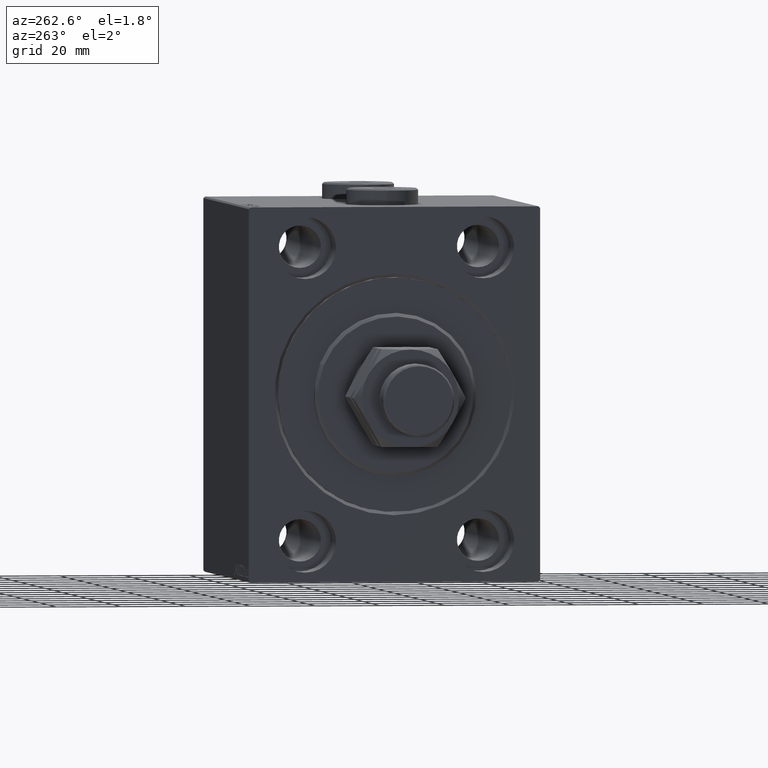
[diagram: clean part render]
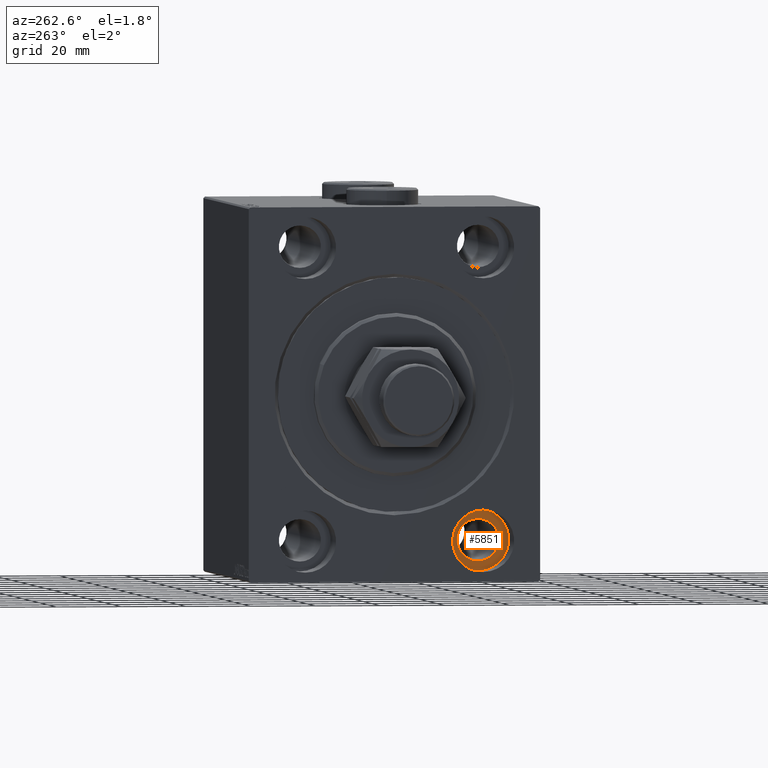
[diagram: same view with one face highlighted and labeled with its STEP entity id]
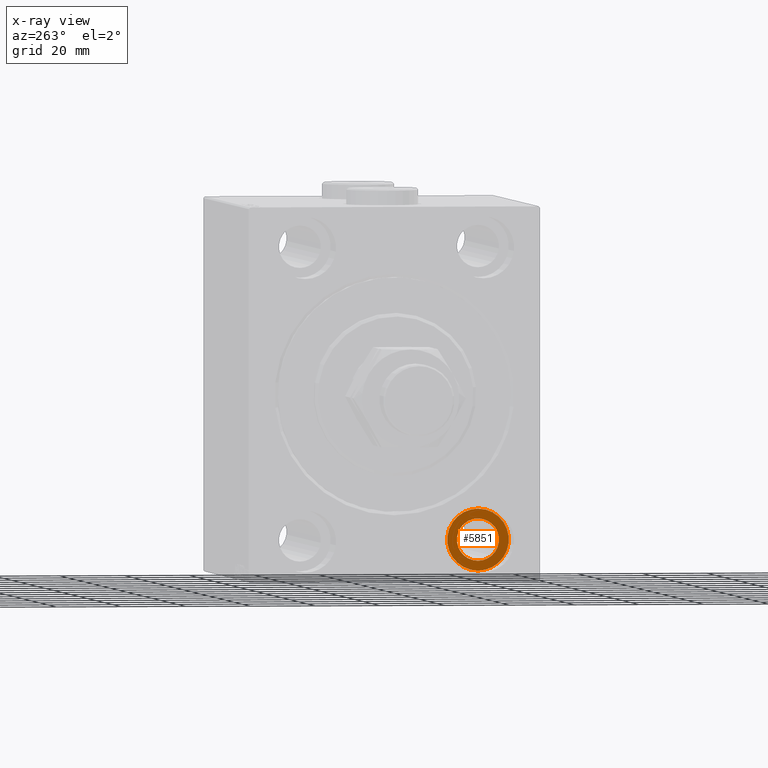
[diagram: x-ray of the same camera — body ghosted, the highlighted face saturated]
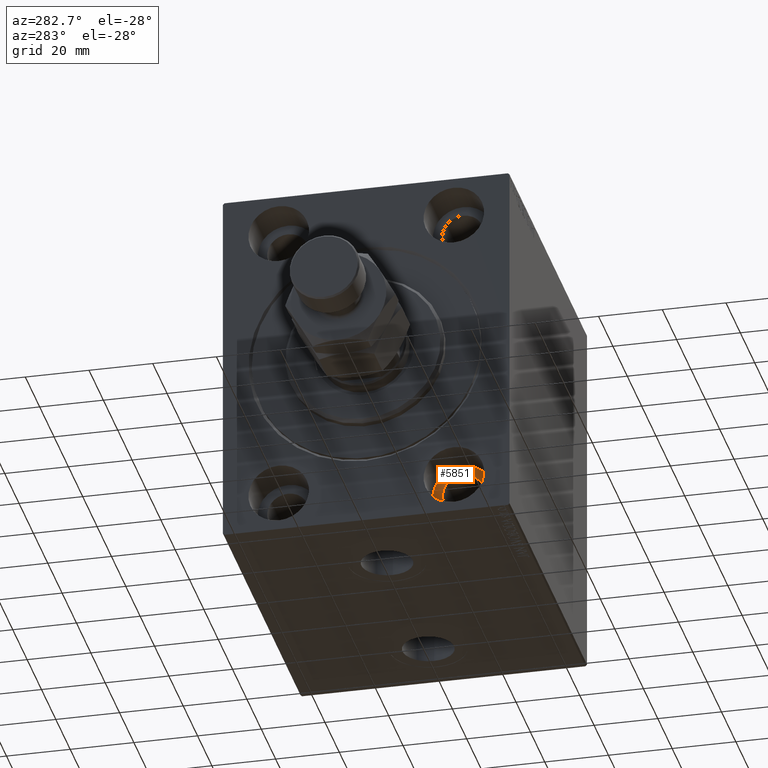
[diagram: same view with one face highlighted and labeled with its STEP entity id]
A machine part, auxiliary view. The second image highlights one B-rep face of the part: STEP entity #5851.
The next image is the same camera in x-ray: the body ghosted, the highlighted face saturated — about 0% of this face is hidden behind the body in this view.
A second angle (auxiliary view) of the same face is appended — the face is thin or edge-on in the first view.
In plain terms, the highlighted planar face has unit normal (-1, 0, 0).
Its self-contained STEP definition (entity closure, byte-faithful):
#1397 = CARTESIAN_POINT ( 'NONE',  ( 13.00000000000000000, -27.50000000000000000, -44.99999999999998579 ) ) ;
#2525 = CIRCLE ( 'NONE', #14676, 9.500000000000001776 ) ;
#5188 = DIRECTION ( 'NONE',  ( 0.000000000000000000, 0.000000000000000000, 1.000000000000000000 ) ) ;
#5697 = VERTEX_POINT ( 'NONE', #28903 ) ;
#5851 = ADVANCED_FACE ( 'NONE', ( #44364, #15821 ), #30333, .T. ) ;
#6086 = CARTESIAN_POINT ( 'NONE',  ( 12.99999999999999822, -27.50000000000000000, -44.99999999999998579 ) ) ;
#6562 = DIRECTION ( 'NONE',  ( -1.000000000000000000, 0.000000000000000000, 0.000000000000000000 ) ) ;
#7516 = DIRECTION ( 'NONE',  ( -1.000000000000000000, 0.000000000000000000, 0.000000000000000000 ) ) ;
#10141 = DIRECTION ( 'NONE',  ( 0.000000000000000000, 0.000000000000000000, 1.000000000000000000 ) ) ;
#11099 = CARTESIAN_POINT ( 'NONE',  ( 13.00000000000000000, 0.000000000000000000, 0.000000000000000000 ) ) ;
#13023 = DIRECTION ( 'NONE',  ( -1.000000000000000000, 0.000000000000000000, 0.000000000000000000 ) ) ;
#14676 = AXIS2_PLACEMENT_3D ( 'NONE', #1397, #30397, #5188 ) ;
#15821 = FACE_OUTER_BOUND ( 'NONE', #30021, .T. ) ;
#16589 = DIRECTION ( 'NONE',  ( 0.000000000000000000, 0.000000000000000000, 1.000000000000000000 ) ) ;
#18347 = DIRECTION ( 'NONE',  ( 0.000000000000000000, 0.000000000000000000, 1.000000000000000000 ) ) ;
#19091 = ORIENTED_EDGE ( 'NONE', *, *, #32550, .F. ) ;
#20508 = EDGE_CURVE ( 'NONE', #33847, #5697, #28596, .T. ) ;
#21780 = CARTESIAN_POINT ( 'NONE',  ( 12.99999999999999822, -27.50000000000000000, -51.49999999999998579 ) ) ;
#22021 = DIRECTION ( 'NONE',  ( 0.000000000000000000, 0.000000000000000000, 1.000000000000000000 ) ) ;
#22095 = CARTESIAN_POINT ( 'NONE',  ( 12.99999999999999822, -27.50000000000000000, -38.49999999999998579 ) ) ;
#22163 = DIRECTION ( 'NONE',  ( -1.000000000000000000, 0.000000000000000000, 0.000000000000000000 ) ) ;
#22403 = CARTESIAN_POINT ( 'NONE',  ( 12.99999999999999822, -27.50000000000000000, -44.99999999999998579 ) ) ;
#27101 = EDGE_LOOP ( 'NONE', ( #33094, #19091 ) ) ;
#27869 = AXIS2_PLACEMENT_3D ( 'NONE', #42022, #13023, #16589 ) ;
#28596 = CIRCLE ( 'NONE', #27869, 9.500000000000001776 ) ;
#28903 = CARTESIAN_POINT ( 'NONE',  ( 13.00000000000000000, -27.50000000000000000, -54.49999999999998579 ) ) ;
#29057 = CIRCLE ( 'NONE', #36622, 6.499999999999999112 ) ;
#30021 = EDGE_LOOP ( 'NONE', ( #46862, #41832 ) ) ;
#30022 = VERTEX_POINT ( 'NONE', #21780 ) ;
#30333 = PLANE ( 'NONE',  #38911 ) ;
#30397 = DIRECTION ( 'NONE',  ( -1.000000000000000000, 0.000000000000000000, 0.000000000000000000 ) ) ;
#31682 = VERTEX_POINT ( 'NONE', #22095 ) ;
#32034 = AXIS2_PLACEMENT_3D ( 'NONE', #22403, #22163, #18347 ) ;
#32550 = EDGE_CURVE ( 'NONE', #30022, #31682, #32760, .T. ) ;
#32760 = CIRCLE ( 'NONE', #32034, 6.499999999999999112 ) ;
#33094 = ORIENTED_EDGE ( 'NONE', *, *, #34340, .F. ) ;
#33847 = VERTEX_POINT ( 'NONE', #37947 ) ;
#34340 = EDGE_CURVE ( 'NONE', #31682, #30022, #29057, .T. ) ;
#36622 = AXIS2_PLACEMENT_3D ( 'NONE', #6086, #6562, #10141 ) ;
#37947 = CARTESIAN_POINT ( 'NONE',  ( 13.00000000000000000, -27.50000000000000000, -35.49999999999998579 ) ) ;
#38911 = AXIS2_PLACEMENT_3D ( 'NONE', #11099, #7516, #22021 ) ;
#41269 = EDGE_CURVE ( 'NONE', #5697, #33847, #2525, .T. ) ;
#41832 = ORIENTED_EDGE ( 'NONE', *, *, #41269, .T. ) ;
#42022 = CARTESIAN_POINT ( 'NONE',  ( 13.00000000000000000, -27.50000000000000000, -44.99999999999998579 ) ) ;
#44364 = FACE_BOUND ( 'NONE', #27101, .T. ) ;
#46862 = ORIENTED_EDGE ( 'NONE', *, *, #20508, .T. ) ;